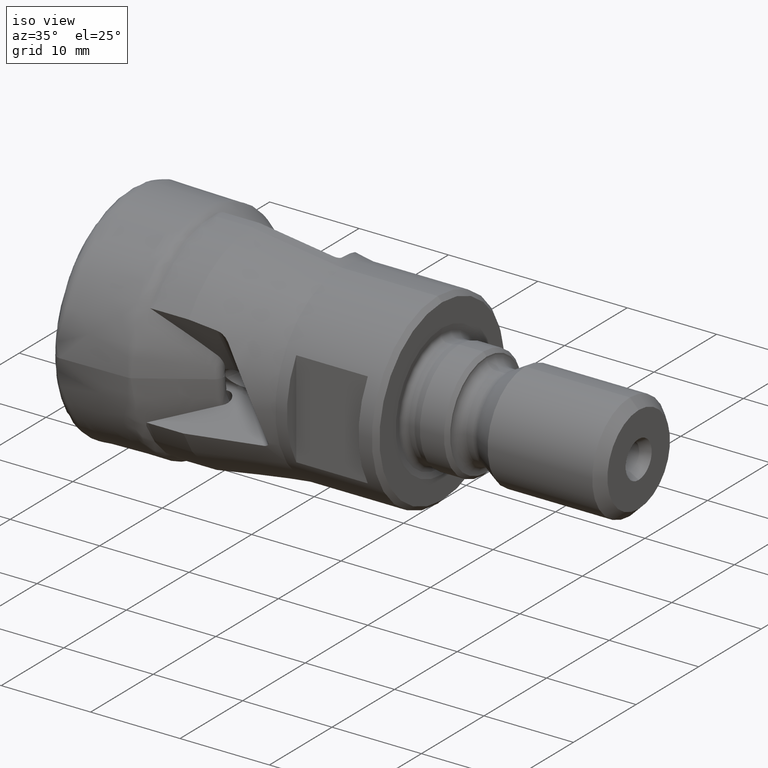
[diagram: clean part render]
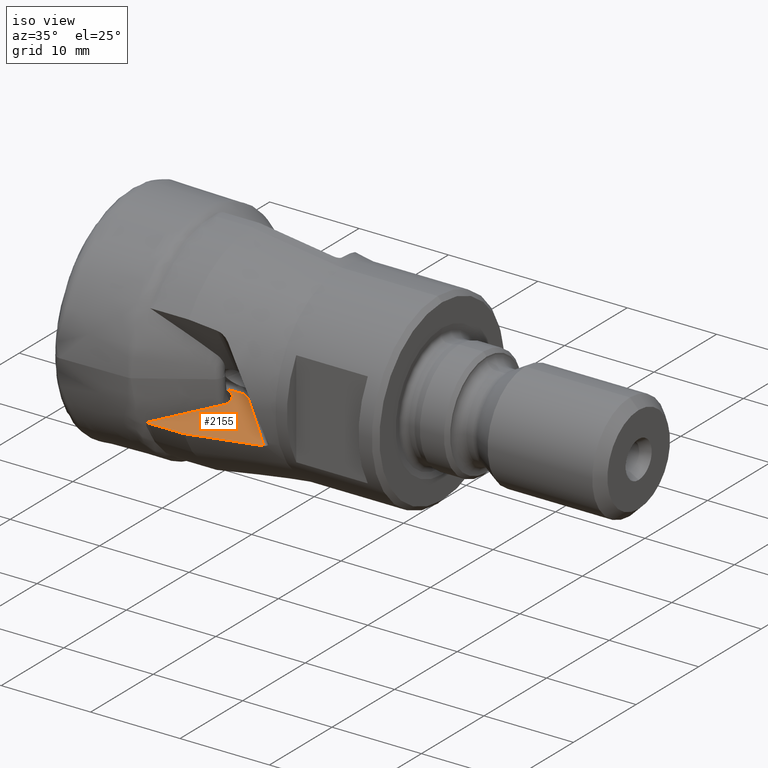
[diagram: same view with one face highlighted and labeled with its STEP entity id]
A machine part, iso view. The second image highlights one B-rep face of the part: STEP entity #2155.
In plain terms, the highlighted planar face has unit normal (0, 0.5, -0.866).
Its self-contained STEP definition (entity closure, byte-faithful):
#30 = EDGE_CURVE ( 'NONE', #2719, #2355, #3045, .T. ) ;
#38 = CARTESIAN_POINT ( 'NONE',  ( 14.23732183333204300, -5.952173373125093600, -1.958472210111588300 ) ) ;
#55 = CARTESIAN_POINT ( 'NONE',  ( 14.16905331695928500, -5.911712226567902700, -1.935111956255073600 ) ) ;
#67 = AXIS2_PLACEMENT_3D ( 'NONE', #2025, #1634, #2974 ) ;
#68 = DIRECTION ( 'NONE',  ( -0.0000000000000000000, -0.4999999999999919500, 0.8660254037844432600 ) ) ;
#94 = VERTEX_POINT ( 'NONE', #5545 ) ;
#204 = FACE_OUTER_BOUND ( 'NONE', #1453, .T. ) ;
#253 = CARTESIAN_POINT ( 'NONE',  ( 17.06066017177981600, -6.216631874839610100, -2.111157397265945400 ) ) ;
#255 = LINE ( 'NONE', #5280, #4257 ) ;
#280 = ORIENTED_EDGE ( 'NONE', *, *, #1786, .F. ) ;
#388 = CARTESIAN_POINT ( 'NONE',  ( 16.16419142744733900, -5.831958416764283700, -1.889066072696058200 ) ) ;
#389 = CARTESIAN_POINT ( 'NONE',  ( 15.70144823452961100, -5.826699289389039500, -1.886029714090256900 ) ) ;
#444 = DIRECTION ( 'NONE',  ( -0.7071067811865515700, 0.6123724356957943600, 0.3535533905932660100 ) ) ;
#645 = DIRECTION ( 'NONE',  ( -1.000000000000000000, -9.389466242107295700E-017, -5.421010862427434700E-017 ) ) ;
#691 = DIRECTION ( 'NONE',  ( 0.8290375725550488400, 0.4842752600216395600, 0.2795964517353636800 ) ) ;
#708 = AXIS2_PLACEMENT_3D ( 'NONE', #4734, #5093, #4668 ) ;
#712 = CARTESIAN_POINT ( 'NONE',  ( 15.77176566229695000, -6.842152368699199600, -2.472301822779400000 ) ) ;
#717 = EDGE_CURVE ( 'NONE', #2929, #2823, #3376, .T. ) ;
#742 = ORIENTED_EDGE ( 'NONE', *, *, #4556, .T. ) ;
#752 = EDGE_CURVE ( 'NONE', #2422, #3753, #4613, .T. ) ;
#784 = EDGE_CURVE ( 'NONE', #3753, #5088, #5022, .T. ) ;
#786 = CARTESIAN_POINT ( 'NONE',  ( 16.40198492571498800, -5.881646025332010200, -1.917753226878021700 ) ) ;
#805 = CARTESIAN_POINT ( 'NONE',  ( 16.47986590923319700, -5.904419821928669000, -1.930901684473572200 ) ) ;
#825 = CARTESIAN_POINT ( 'NONE',  ( 16.47986590923319700, -5.904419821928669000, -1.930901684473572200 ) ) ;
#847 = CARTESIAN_POINT ( 'NONE',  ( 15.34646785717579400, -5.835530360658317800, -1.891128335464807400 ) ) ;
#880 = VECTOR ( 'NONE', #645, 1000.000000000000000 ) ;
#896 = CARTESIAN_POINT ( 'NONE',  ( 14.02784741471245100, -5.836152422706648600, -1.891487483155863500 ) ) ;
#946 = ORIENTED_EDGE ( 'NONE', *, *, #717, .F. ) ;
#991 = ORIENTED_EDGE ( 'NONE', *, *, #2419, .T. ) ;
#1170 = VERTEX_POINT ( 'NONE', #4785 ) ;
#1196 = PLANE ( 'NONE',  #67 ) ;
#1222 = LINE ( 'NONE', #712, #4471 ) ;
#1287 = CARTESIAN_POINT ( 'NONE',  ( 15.91932510386305600, -5.824469905122112900, -1.884742578483619800 ) ) ;
#1374 = CARTESIAN_POINT ( 'NONE',  ( 14.09902773870145900, -5.873269175713123700, -1.912916850495602200 ) ) ;
#1453 = EDGE_LOOP ( 'NONE', ( #991, #3609, #3606, #280, #3944, #2277, #946, #3897, #742, #4863, #1940, #3835 ) ) ;
#1493 = CARTESIAN_POINT ( 'NONE',  ( 16.00000000000000000, -5.836152422706648600, -1.891487483155863500 ) ) ;
#1560 = EDGE_CURVE ( 'NONE', #5088, #2398, #3210, .T. ) ;
#1634 = DIRECTION ( 'NONE',  ( 0.0000000000000000000, 0.4999999999999919500, -0.8660254037844432600 ) ) ;
#1667 = CARTESIAN_POINT ( 'NONE',  ( 14.99610448973157000, -7.295248257797575200, -2.733896856319055300 ) ) ;
#1737 = CARTESIAN_POINT ( 'NONE',  ( 15.25507425084367300, -5.836152422706647700, -1.891487483155863200 ) ) ;
#1786 = EDGE_CURVE ( 'NONE', #3768, #2719, #2069, .T. ) ;
#1791 = CARTESIAN_POINT ( 'NONE',  ( 8.855388818556395600, -10.88229518645755800, -4.804879366176670900 ) ) ;
#1862 = VECTOR ( 'NONE', #2891, 1000.000000000000200 ) ;
#1940 = ORIENTED_EDGE ( 'NONE', *, *, #784, .T. ) ;
#1973 = AXIS2_PLACEMENT_3D ( 'NONE', #2272, #68, #2291 ) ;
#2000 = CARTESIAN_POINT ( 'NONE',  ( 15.25507425084367300, -5.836152422706647700, -1.891487483155863200 ) ) ;
#2025 = CARTESIAN_POINT ( 'NONE',  ( 16.00000000000000000, -7.135190528383312800, -2.641487483155851500 ) ) ;
#2069 = CIRCLE ( 'NONE', #1973, 0.8530003591475702200 ) ;
#2155 = ADVANCED_FACE ( 'NONE', ( #204 ), #1196, .F. ) ;
#2159 = CARTESIAN_POINT ( 'NONE',  ( 15.95966287339225800, -5.824254677437818600, -1.884618316722155700 ) ) ;
#2189 = EDGE_CURVE ( 'NONE', #2823, #3935, #2532, .T. ) ;
#2272 = CARTESIAN_POINT ( 'NONE',  ( 14.51911274223826000, -6.682821638399892600, -2.380312182750917000 ) ) ;
#2277 = ORIENTED_EDGE ( 'NONE', *, *, #2189, .F. ) ;
#2291 = DIRECTION ( 'NONE',  ( -2.033672620853724300E-015, 0.8660254037844431500, 0.4999999999999921200 ) ) ;
#2355 = VERTEX_POINT ( 'NONE', #5067 ) ;
#2398 = VERTEX_POINT ( 'NONE', #2000 ) ;
#2419 = EDGE_CURVE ( 'NONE', #2398, #94, #4558, .T. ) ;
#2422 = VERTEX_POINT ( 'NONE', #253 ) ;
#2481 = CARTESIAN_POINT ( 'NONE',  ( 16.00000000000000000, -5.824254677437813200, -1.884618316722152400 ) ) ;
#2532 = B_SPLINE_CURVE_WITH_KNOTS ( 'NONE', 3,
 ( #4923, #3442, #4889, #4902 ),
 .UNSPECIFIED., .F., .F.,
 ( 4, 4 ),
 ( 2.000833577471384400E-007, 0.0001448715373584982500 ),
 .UNSPECIFIED. ) ;
#2562 = CARTESIAN_POINT ( 'NONE',  ( 9.000000000000000000, -10.88591137966754700, -4.806967176299899300 ) ) ;
#2598 = CARTESIAN_POINT ( 'NONE',  ( 16.00000000000000000, -5.824254677437813200, -1.884618316722152400 ) ) ;
#2620 = CARTESIAN_POINT ( 'NONE',  ( 21.28488839681745400, -9.874920829105434400, -4.223271509784709100 ) ) ;
#2665 = CARTESIAN_POINT ( 'NONE',  ( 15.76166345964789200, -10.54912352693657200, -4.612522618865880600 ) ) ;
#2719 = VERTEX_POINT ( 'NONE', #5007 ) ;
#2823 = VERTEX_POINT ( 'NONE', #2562 ) ;
#2891 = DIRECTION ( 'NONE',  ( -0.9993908270190958700, -0.03022385072365123600, -0.01744974835124673100 ) ) ;
#2929 = VERTEX_POINT ( 'NONE', #3846 ) ;
#2974 = DIRECTION ( 'NONE',  ( 0.0000000000000000000, 0.8660254037844432600, 0.4999999999999919500 ) ) ;
#3032 = CARTESIAN_POINT ( 'NONE',  ( 16.32371618149434400, -5.860613070811002200, -1.905609844923465300 ) ) ;
#3045 = LINE ( 'NONE', #5478, #1862 ) ;
#3090 = CARTESIAN_POINT ( 'NONE',  ( 12.99999999999999800, -10.88591137966754700, -4.806967176299899300 ) ) ;
#3210 = B_SPLINE_CURVE_WITH_KNOTS ( 'NONE', 3,
 ( #2598, #2159, #1287, #3481, #389, #3499, #847, #5263, #4388, #1737 ),
 .UNSPECIFIED., .F., .F.,
 ( 4, 3, 3, 4 ),
 ( 9.021005127586743300E-017, 0.0001210113798235000100, 0.0006537010246657927600, 0.0007451006442121208800 ),
 .UNSPECIFIED. ) ;
#3364 = EDGE_CURVE ( 'NONE', #3935, #3768, #1222, .T. ) ;
#3376 = LINE ( 'NONE', #3411, #3440 ) ;
#3411 = CARTESIAN_POINT ( 'NONE',  ( 0.0000000000000000000, -10.88591137966754700, -4.806967176299899300 ) ) ;
#3440 = VECTOR ( 'NONE', #3859, 1000.000000000000000 ) ;
#3442 = CARTESIAN_POINT ( 'NONE',  ( 8.951796272770113900, -10.88470598439078300, -4.806271241012380500 ) ) ;
#3481 = CARTESIAN_POINT ( 'NONE',  ( 15.87899079249793000, -5.824882618410355500, -1.884980858611685200 ) ) ;
#3499 = CARTESIAN_POINT ( 'NONE',  ( 15.52400360491565400, -5.833268963582989700, -1.889822717254622300 ) ) ;
#3501 = CARTESIAN_POINT ( 'NONE',  ( 18.52329667044007900, -10.21214954765702000, -4.417970601218936400 ) ) ;
#3606 = ORIENTED_EDGE ( 'NONE', *, *, #30, .F. ) ;
#3609 = ORIENTED_EDGE ( 'NONE', *, *, #4870, .T. ) ;
#3753 = VERTEX_POINT ( 'NONE', #805 ) ;
#3768 = VERTEX_POINT ( 'NONE', #1667 ) ;
#3835 = ORIENTED_EDGE ( 'NONE', *, *, #1560, .T. ) ;
#3846 = CARTESIAN_POINT ( 'NONE',  ( 12.99999999999999800, -10.88591137966754700, -4.806967176299899300 ) ) ;
#3859 = DIRECTION ( 'NONE',  ( -1.000000000000000000, -0.0000000000000000000, -0.0000000000000000000 ) ) ;
#3897 = ORIENTED_EDGE ( 'NONE', *, *, #3952, .F. ) ;
#3935 = VERTEX_POINT ( 'NONE', #1791 ) ;
#3944 = ORIENTED_EDGE ( 'NONE', *, *, #3364, .F. ) ;
#3952 = EDGE_CURVE ( 'NONE', #1170, #2929, #4192, .T. ) ;
#4192 = B_SPLINE_CURVE_WITH_KNOTS ( 'NONE', 3,
 ( #2620, #3501, #2665, #3090 ),
 .UNSPECIFIED., .F., .F.,
 ( 4, 4 ),
 ( 0.001732285492673327600, 0.01009901593189700200 ),
 .UNSPECIFIED. ) ;
#4257 = VECTOR ( 'NONE', #444, 999.9999999999998900 ) ;
#4351 = CARTESIAN_POINT ( 'NONE',  ( 16.08295369142722500, -5.824254677437814100, -1.884618316722152600 ) ) ;
#4388 = CARTESIAN_POINT ( 'NONE',  ( 15.28553972716368400, -5.836152422706647700, -1.891487483155863000 ) ) ;
#4471 = VECTOR ( 'NONE', #691, 1000.000000000000100 ) ;
#4556 = EDGE_CURVE ( 'NONE', #1170, #2422, #255, .T. ) ;
#4558 = LINE ( 'NONE', #1493, #880 ) ;
#4613 = CIRCLE ( 'NONE', #708, 1.500000000000000200 ) ;
#4668 = DIRECTION ( 'NONE',  ( -1.156482317317871300E-014, 0.8660254037844432600, 0.4999999999999920100 ) ) ;
#4734 = CARTESIAN_POINT ( 'NONE',  ( 16.00000000000000000, -7.135190528383312800, -2.641487483155851500 ) ) ;
#4785 = CARTESIAN_POINT ( 'NONE',  ( 21.28488839681745400, -9.874920829105434400, -4.223271509784709100 ) ) ;
#4821 = B_SPLINE_CURVE_WITH_KNOTS ( 'NONE', 3,
 ( #896, #1374, #55, #38 ),
 .UNSPECIFIED., .F., .F.,
 ( 4, 4 ),
 ( 9.532836760364486400E-005, 0.0003432413759545092700 ),
 .UNSPECIFIED. ) ;
#4863 = ORIENTED_EDGE ( 'NONE', *, *, #752, .T. ) ;
#4870 = EDGE_CURVE ( 'NONE', #94, #2355, #4821, .T. ) ;
#4889 = CARTESIAN_POINT ( 'NONE',  ( 8.903592545622217400, -10.88350058665498600, -4.805575304305136800 ) ) ;
#4902 = CARTESIAN_POINT ( 'NONE',  ( 8.855388818556395600, -10.88229518645755800, -4.804879366176670900 ) ) ;
#4923 = CARTESIAN_POINT ( 'NONE',  ( 9.000000000000000000, -10.88591137966754700, -4.806967176299899300 ) ) ;
#5007 = CARTESIAN_POINT ( 'NONE',  ( 14.48934345901696100, -5.944551666193391700, -1.954071815562885800 ) ) ;
#5022 = B_SPLINE_CURVE_WITH_KNOTS ( 'NONE', 3,
 ( #825, #786, #3032, #388, #4351, #5246 ),
 .UNSPECIFIED., .F., .F.,
 ( 4, 2, 4 ),
 ( 3.602423855278283900E-018, 0.0002443562416666824800, 0.0004887124833333613800 ),
 .UNSPECIFIED. ) ;
#5067 = CARTESIAN_POINT ( 'NONE',  ( 14.23732183333204300, -5.952173373125093600, -1.958472210111588300 ) ) ;
#5088 = VERTEX_POINT ( 'NONE', #2481 ) ;
#5093 = DIRECTION ( 'NONE',  ( -0.0000000000000000000, -0.4999999999999919500, 0.8660254037844432600 ) ) ;
#5246 = CARTESIAN_POINT ( 'NONE',  ( 16.00000000000000000, -5.824254677437813200, -1.884618316722152400 ) ) ;
#5263 = CARTESIAN_POINT ( 'NONE',  ( 15.31600567564989900, -5.835918378784739100, -1.891352357834547000 ) ) ;
#5280 = CARTESIAN_POINT ( 'NONE',  ( 17.06066017177981600, -6.216631874839611000, -2.111157397265946300 ) ) ;
#5478 = CARTESIAN_POINT ( 'NONE',  ( 15.95020836532800800, -5.900371790150841500, -1.928564552236955400 ) ) ;
#5545 = CARTESIAN_POINT ( 'NONE',  ( 14.02784741471245100, -5.836152422706648600, -1.891487483155863500 ) ) ;